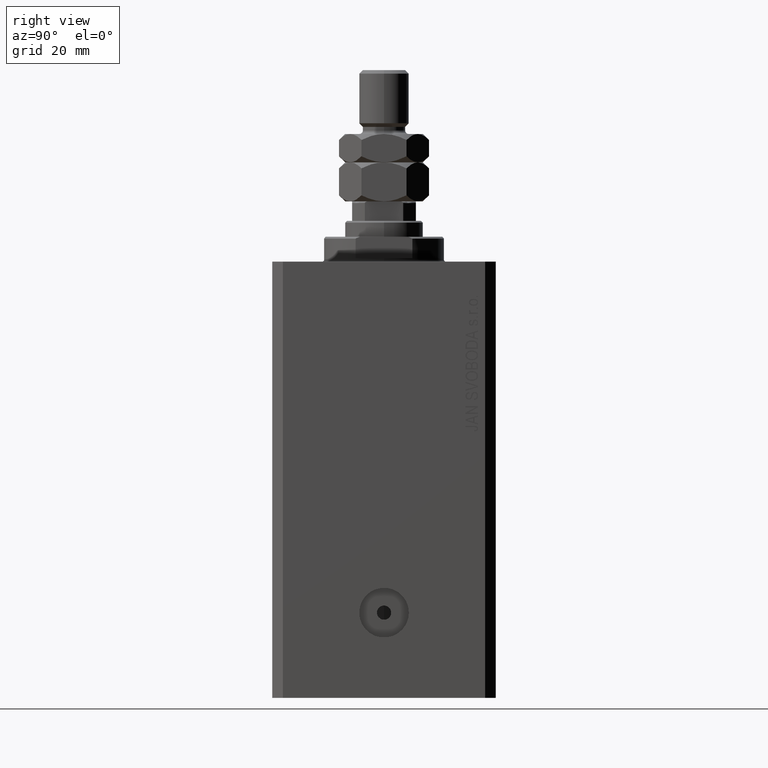
[diagram: clean part render]
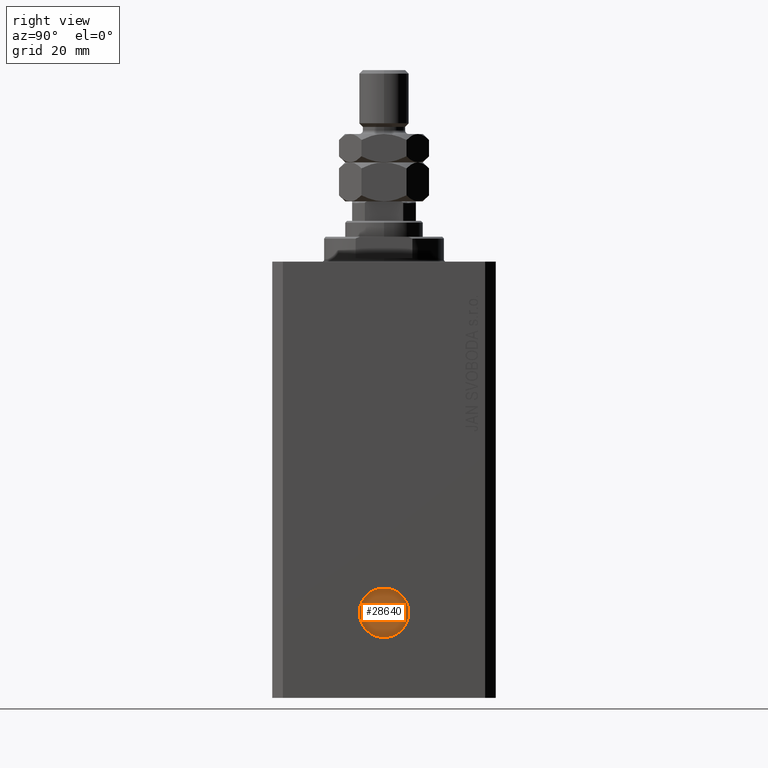
[diagram: same view with one face highlighted and labeled with its STEP entity id]
A machine part, right view. The second image highlights one B-rep face of the part: STEP entity #28640.
In plain terms, the highlighted planar face has unit normal (1, -0, 0).
Its self-contained STEP definition (entity closure, byte-faithful):
#8 = EDGE_CURVE ( 'NONE', #19175, #42256, #31763, .T. ) ;
#1842 = AXIS2_PLACEMENT_3D ( 'NONE', #30622, #27119, #6555 ) ;
#3753 = VERTEX_POINT ( 'NONE', #42082 ) ;
#3963 = DIRECTION ( 'NONE',  ( 1.000000000000000000, -1.334402673828349134E-14, 0.000000000000000000 ) ) ;
#6013 = ORIENTED_EDGE ( 'NONE', *, *, #15784, .T. ) ;
#6365 = CARTESIAN_POINT ( 'NONE',  ( 38.00000000000036238, 7.000000000000098588, -99.00000000000000000 ) ) ;
#6555 = DIRECTION ( 'NONE',  ( 1.387778780781448358E-14, 1.000000000000000000, 0.000000000000000000 ) ) ;
#7459 = DIRECTION ( 'NONE',  ( 1.334402673828349134E-14, 1.000000000000000000, 0.000000000000000000 ) ) ;
#8242 = DIRECTION ( 'NONE',  ( 1.000000000000000000, -1.334402673828349134E-14, 0.000000000000000000 ) ) ;
#9158 = CARTESIAN_POINT ( 'NONE',  ( 38.00000000000027001, 9.869897671684396916E-14, -99.00000000000000000 ) ) ;
#11638 = AXIS2_PLACEMENT_3D ( 'NONE', #9158, #8242, #36720 ) ;
#12642 = DIRECTION ( 'NONE',  ( 1.288651725011342390E-14, 1.000000000000000000, 0.000000000000000000 ) ) ;
#14471 = PLANE ( 'NONE',  #15195 ) ;
#15195 = AXIS2_PLACEMENT_3D ( 'NONE', #25223, #3963, #7459 ) ;
#15285 = CIRCLE ( 'NONE', #1842, 1.999999999999996225 ) ;
#15784 = EDGE_CURVE ( 'NONE', #42256, #19175, #30239, .T. ) ;
#17288 = ORIENTED_EDGE ( 'NONE', *, *, #36299, .F. ) ;
#18670 = FACE_OUTER_BOUND ( 'NONE', #31498, .T. ) ;
#18903 = FACE_BOUND ( 'NONE', #21462, .T. ) ;
#19175 = VERTEX_POINT ( 'NONE', #6365 ) ;
#20122 = DIRECTION ( 'NONE',  ( 1.000000000000000000, -1.334402673828349134E-14, 0.000000000000000000 ) ) ;
#21462 = EDGE_LOOP ( 'NONE', ( #17288, #44092 ) ) ;
#21699 = CARTESIAN_POINT ( 'NONE',  ( 38.00000000000024158, -1.999999999999897193, -99.00000000000000000 ) ) ;
#23018 = CIRCLE ( 'NONE', #45374, 1.999999999999996225 ) ;
#23828 = CARTESIAN_POINT ( 'NONE',  ( 38.00000000000017764, -6.999999999999901412, -99.00000000000000000 ) ) ;
#25223 = CARTESIAN_POINT ( 'NONE',  ( 38.00000000000027001, 9.869897671684396916E-14, -99.00000000000000000 ) ) ;
#26880 = DIRECTION ( 'NONE',  ( 1.000000000000000000, -1.334402673828349134E-14, 0.000000000000000000 ) ) ;
#26921 = VERTEX_POINT ( 'NONE', #21699 ) ;
#27119 = DIRECTION ( 'NONE',  ( 1.000000000000000000, -1.334402673828349134E-14, 0.000000000000000000 ) ) ;
#27239 = AXIS2_PLACEMENT_3D ( 'NONE', #45098, #20122, #12642 ) ;
#28640 = ADVANCED_FACE ( 'NONE', ( #18903, #18670 ), #14471, .T. ) ;
#30239 = CIRCLE ( 'NONE', #27239, 7.000000000000000000 ) ;
#30566 = ORIENTED_EDGE ( 'NONE', *, *, #8, .T. ) ;
#30622 = CARTESIAN_POINT ( 'NONE',  ( 38.00000000000027001, 9.869897671684393130E-14, -99.00000000000000000 ) ) ;
#31073 = CARTESIAN_POINT ( 'NONE',  ( 38.00000000000027001, 9.869897671684393130E-14, -99.00000000000000000 ) ) ;
#31498 = EDGE_LOOP ( 'NONE', ( #30566, #6013 ) ) ;
#31763 = CIRCLE ( 'NONE', #11638, 7.000000000000000000 ) ;
#36299 = EDGE_CURVE ( 'NONE', #3753, #26921, #15285, .T. ) ;
#36720 = DIRECTION ( 'NONE',  ( 1.288651725011342390E-14, 1.000000000000000000, 0.000000000000000000 ) ) ;
#40885 = DIRECTION ( 'NONE',  ( 1.387778780781448358E-14, 1.000000000000000000, 0.000000000000000000 ) ) ;
#42082 = CARTESIAN_POINT ( 'NONE',  ( 38.00000000000029843, 2.000000000000095035, -99.00000000000000000 ) ) ;
#42256 = VERTEX_POINT ( 'NONE', #23828 ) ;
#44092 = ORIENTED_EDGE ( 'NONE', *, *, #45763, .F. ) ;
#45098 = CARTESIAN_POINT ( 'NONE',  ( 38.00000000000027001, 9.869897671684396916E-14, -99.00000000000000000 ) ) ;
#45374 = AXIS2_PLACEMENT_3D ( 'NONE', #31073, #26880, #40885 ) ;
#45763 = EDGE_CURVE ( 'NONE', #26921, #3753, #23018, .T. ) ;